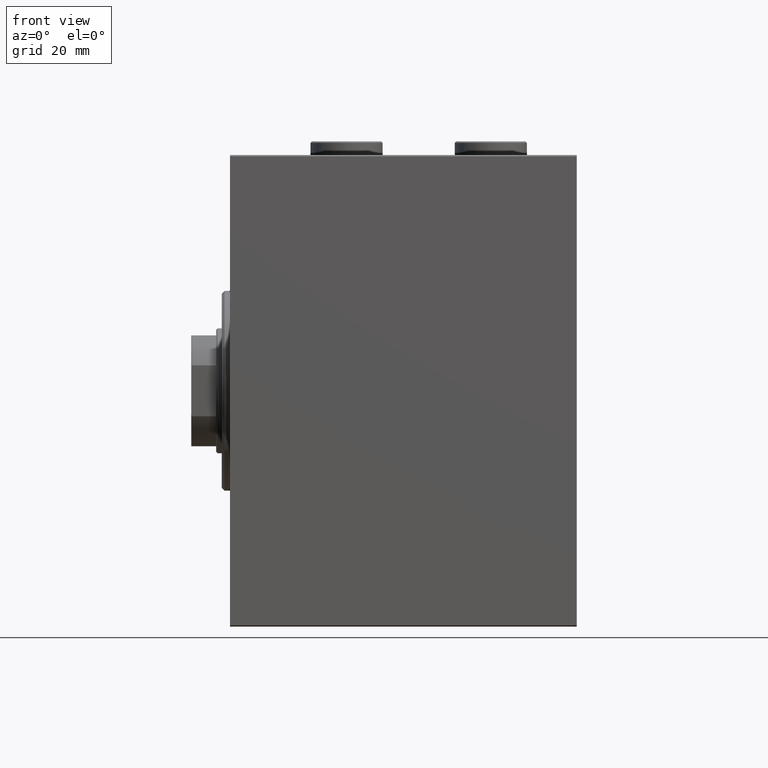
[diagram: clean part render]
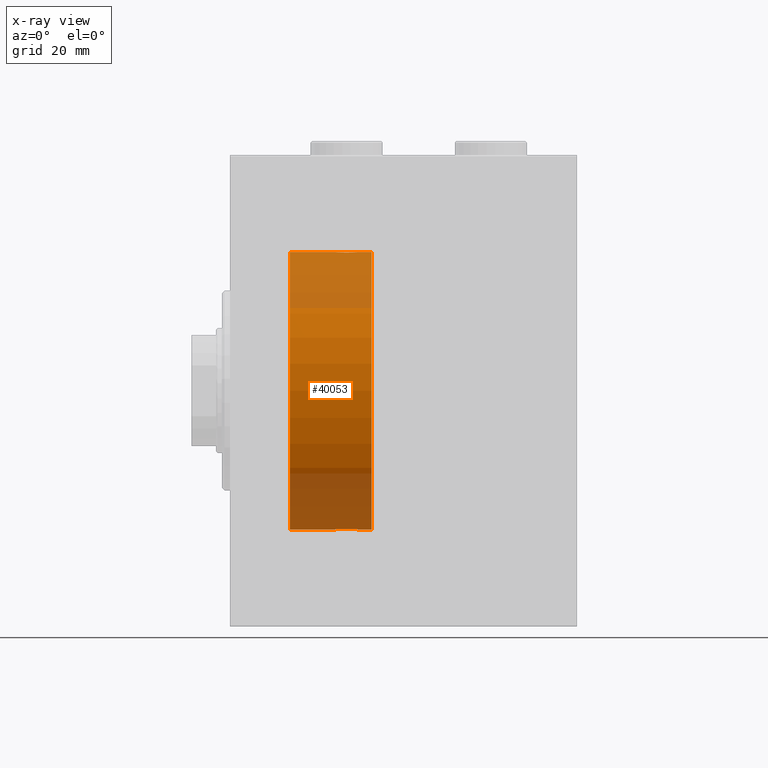
[diagram: x-ray — body ghosted, one internal face saturated and labeled with its STEP entity id]
A machine part, front view, then the same camera in x-ray: the body is ghosted and one INTERNAL B-rep face — a face not visible from any outside direction — is saturated and labeled: STEP entity #40053.
In plain terms, the highlighted cylindrical surface (partial cylindrical patch) has radius 50 mm, axis along (-1, -0, -0).
Its self-contained STEP definition (entity closure, byte-faithful):
#683 = CARTESIAN_POINT ( 'NONE',  ( 45.37881717263736192, -2.593114840406122390, -49.93325460257641168 ) ) ;
#684 = CARTESIAN_POINT ( 'NONE',  ( 37.75000000000000711, -7.073857814331912646E-15, -50.00000000000000000 ) ) ;
#717 = VERTEX_POINT ( 'NONE', #11257 ) ;
#1375 = CARTESIAN_POINT ( 'NONE',  ( 37.75000000000000711, -2.480809774739037926E-23, 50.00000000000000000 ) ) ;
#1570 = CARTESIAN_POINT ( 'NONE',  ( 44.58820214676201488, -3.382416624899787561, 49.88570010427956447 ) ) ;
#1645 = VERTEX_POINT ( 'NONE', #1375 ) ;
#2255 = CARTESIAN_POINT ( 'NONE',  ( 43.88217049484444487, -3.820681512513388611, 49.85392475515401145 ) ) ;
#2477 = CARTESIAN_POINT ( 'NONE',  ( 40.62666563420963683, -4.031616700143192844, 49.83731072121799599 ) ) ;
#2862 = DIRECTION ( 'NONE',  ( -1.000000000000000000, -0.000000000000000000, -0.000000000000000000 ) ) ;
#3230 = CARTESIAN_POINT ( 'NONE',  ( 45.68937155679385853, -2.128188802142358949, -49.95522967821975158 ) ) ;
#3381 = DIRECTION ( 'NONE',  ( -1.000000000000000000, -0.000000000000000000, -0.000000000000000000 ) ) ;
#3683 = CARTESIAN_POINT ( 'NONE',  ( 44.13136399446156588, -3.687400765141522818, -49.86408552998298660 ) ) ;
#3905 = CARTESIAN_POINT ( 'NONE',  ( 46.22310752799000966, -0.5531336717328987351, -49.99769193709643389 ) ) ;
#4611 = DIRECTION ( 'NONE',  ( 0.000000000000000000, 0.000000000000000000, 1.000000000000000000 ) ) ;
#4641 = CIRCLE ( 'NONE', #10512, 50.00000000000000000 ) ;
#4935 = CARTESIAN_POINT ( 'NONE',  ( 51.00000000000000711, 0.000000000000000000, 50.00000000000000000 ) ) ;
#5783 = EDGE_CURVE ( 'NONE', #8234, #37789, #25804, .T. ) ;
#5930 = CARTESIAN_POINT ( 'NONE',  ( 44.80697831839309941, -3.203153387937325736, 49.89767833571684719 ) ) ;
#6306 = FACE_OUTER_BOUND ( 'NONE', #15897, .T. ) ;
#6411 = EDGE_CURVE ( 'NONE', #717, #24036, #4641, .T. ) ;
#6653 = CARTESIAN_POINT ( 'NONE',  ( 46.25000000000000000, 6.123233970928975205E-15, -50.00000000000000000 ) ) ;
#6771 = DIRECTION ( 'NONE',  ( -1.000000000000000000, -0.000000000000000000, -0.000000000000000000 ) ) ;
#7289 = DIRECTION ( 'NONE',  ( 0.000000000000000000, 0.000000000000000000, 1.000000000000000000 ) ) ;
#7377 = CARTESIAN_POINT ( 'NONE',  ( 21.60000000000000142, 0.000000000000000000, 0.000000000000000000 ) ) ;
#7555 = ORIENTED_EDGE ( 'NONE', *, *, #14020, .T. ) ;
#7577 = CARTESIAN_POINT ( 'NONE',  ( 37.96920203844656783, -1.375411031076042789, -49.98173289062309976 ) ) ;
#8004 = CARTESIAN_POINT ( 'NONE',  ( 38.31062844320614147, -2.128188802142370051, 49.95522967821975158 ) ) ;
#8234 = VERTEX_POINT ( 'NONE', #684 ) ;
#8532 = DIRECTION ( 'NONE',  ( -1.000000000000000000, -0.000000000000000000, -0.000000000000000000 ) ) ;
#8921 = CARTESIAN_POINT ( 'NONE',  ( 46.22242635520780851, -0.5587117664567147202, 49.99763378604802000 ) ) ;
#9359 = ORIENTED_EDGE ( 'NONE', *, *, #28515, .T. ) ;
#9601 = CARTESIAN_POINT ( 'NONE',  ( 41.71604712973302753, -4.249777379711412451, 49.81906655360197789 ) ) ;
#10357 = CARTESIAN_POINT ( 'NONE',  ( 38.80078072038717352, -2.811461347331107419, -49.92127983148852621 ) ) ;
#10512 = AXIS2_PLACEMENT_3D ( 'NONE', #11642, #36261, #7289 ) ;
#10568 = CARTESIAN_POINT ( 'NONE',  ( 43.37333436579036317, -4.031616700143180410, -49.83731072121798888 ) ) ;
#10640 = CARTESIAN_POINT ( 'NONE',  ( 51.00000000000000711, 0.000000000000000000, 50.00000000000000000 ) ) ;
#10837 = EDGE_CURVE ( 'NONE', #37789, #31210, #29777, .T. ) ;
#10972 = CARTESIAN_POINT ( 'NONE',  ( 46.25000000000000000, -8.399120439301708033E-16, 50.00000000000000000 ) ) ;
#11027 = CARTESIAN_POINT ( 'NONE',  ( 39.19302168160691480, -3.203153387937319962, -49.89767833571684719 ) ) ;
#11225 = CARTESIAN_POINT ( 'NONE',  ( 37.88568086693992143, -1.101350136471744623, 49.98862054280448319 ) ) ;
#11248 = CARTESIAN_POINT ( 'NONE',  ( 40.63289352445426772, -4.033756670430848068, -49.83713703490974467 ) ) ;
#11257 = CARTESIAN_POINT ( 'NONE',  ( 51.00000000000000711, 6.123233995736766085E-15, -50.00000000000000000 ) ) ;
#11642 = CARTESIAN_POINT ( 'NONE',  ( 51.00000000000000711, 0.000000000000000000, 0.000000000000000000 ) ) ;
#11963 = ORIENTED_EDGE ( 'NONE', *, *, #23335, .T. ) ;
#12136 = CARTESIAN_POINT ( 'NONE',  ( 40.89676703965783844, -4.113647494206490229, 49.83052139214891696 ) ) ;
#12167 = ORIENTED_EDGE ( 'NONE', *, *, #10837, .T. ) ;
#12509 = VECTOR ( 'NONE', #3381, 1000.000000000000000 ) ;
#12597 = CARTESIAN_POINT ( 'NONE',  ( 46.25000000000000000, -8.399120439301708033E-16, 50.00000000000000000 ) ) ;
#13047 = CARTESIAN_POINT ( 'NONE',  ( 45.19921927961282648, -2.811461347331111416, 49.92127983148852621 ) ) ;
#14020 = EDGE_CURVE ( 'NONE', #1645, #23601, #24075, .T. ) ;
#14149 = ORIENTED_EDGE ( 'NONE', *, *, #5783, .T. ) ;
#14709 = CARTESIAN_POINT ( 'NONE',  ( 41.72275072962083442, -4.250219976861640880, -49.81902879621014080 ) ) ;
#14902 = CARTESIAN_POINT ( 'NONE',  ( 38.17899418014773971, -1.881229021238129517, 49.96525240872482954 ) ) ;
#15897 = EDGE_LOOP ( 'NONE', ( #28337, #9359, #11963, #14149, #12167, #44734, #7555, #27482 ) ) ;
#16280 = CARTESIAN_POINT ( 'NONE',  ( 45.81839248987871827, -1.886522330773423128, 49.96505190380066352 ) ) ;
#16430 = CYLINDRICAL_SURFACE ( 'NONE', #28325, 50.00000000000000000 ) ;
#17487 = CARTESIAN_POINT ( 'NONE',  ( 46.25000000000000000, -0.2773743941468464480, -50.00000000000000711 ) ) ;
#18171 = CARTESIAN_POINT ( 'NONE',  ( 44.59312720885956338, -3.378657745070617224, -49.88595615988430154 ) ) ;
#18369 = CARTESIAN_POINT ( 'NONE',  ( 37.75000000000000711, -2.480809774739037926E-23, 50.00000000000000000 ) ) ;
#19278 = CARTESIAN_POINT ( 'NONE',  ( 39.40687279114045083, -3.378657745070629659, 49.88595615988430154 ) ) ;
#19502 = CARTESIAN_POINT ( 'NONE',  ( 39.18846933484581285, -3.199146701881677934, 49.89793607725460589 ) ) ;
#20335 = CARTESIAN_POINT ( 'NONE',  ( 51.00000000000000711, 0.000000000000000000, 0.000000000000000000 ) ) ;
#20932 = CARTESIAN_POINT ( 'NONE',  ( 40.11782950515556934, -3.820681512513381506, -49.85392475515401145 ) ) ;
#21154 = CARTESIAN_POINT ( 'NONE',  ( 37.75000000000000711, -7.073857814331912646E-15, -50.00000000000000000 ) ) ;
#21383 = CARTESIAN_POINT ( 'NONE',  ( 46.03272642097311973, -1.369753890039645983, -49.98188917176553048 ) ) ;
#22038 = CARTESIAN_POINT ( 'NONE',  ( 38.62118282736263097, -2.593114840406134380, 49.93325460257641168 ) ) ;
#23187 = CARTESIAN_POINT ( 'NONE',  ( 44.12631644875079928, -3.690299572754728530, 49.86386974736159772 ) ) ;
#23335 = EDGE_CURVE ( 'NONE', #41345, #8234, #30616, .T. ) ;
#23414 = CARTESIAN_POINT ( 'NONE',  ( 41.44002132304353125, -4.222042462213131842, 49.82145436824653473 ) ) ;
#23601 = VERTEX_POINT ( 'NONE', #10972 ) ;
#23653 = CARTESIAN_POINT ( 'NONE',  ( 21.60000000000000142, 6.123233995736766085E-15, -50.00000000000000000 ) ) ;
#24036 = VERTEX_POINT ( 'NONE', #4935 ) ;
#24075 = B_SPLINE_CURVE_WITH_KNOTS ( 'NONE', 3,
 ( #18369, #28734, #42755, #11225, #25274, #14902, #8004, #22038, #41131, #19502, #19278, #33086, #33543, #2477, #12136, #23414, #9601, #26862, #26189, #26414, #37232, #2255, #23187, #1570, #5930, #13047, #33310, #44568, #16280, #30322, #30547, #8921, #36534, #12597 ),
 .UNSPECIFIED., .F., .F.,
 ( 4, 2, 2, 2, 2, 2, 2, 2, 2, 2, 2, 2, 2, 2, 2, 2, 4 ),
 ( 0.01329343152928753012, 0.01412407817529631390, 0.01495472482130509768, 0.01578537146731388147, 0.01661601811332266698, 0.01744666475933144903, 0.01827731140534023455, 0.01910795805134901659, 0.01993860469735780211, 0.02076925134336658416, 0.02159989798937536967, 0.02243054463538415172, 0.02326119128139293724, 0.02409183792740172275, 0.02492248457341050480, 0.02575313121941928685, 0.02658377786542807236 ),
 .UNSPECIFIED. ) ;
#24263 = CARTESIAN_POINT ( 'NONE',  ( 51.00000000000000711, 6.123233995736766085E-15, -50.00000000000000000 ) ) ;
#24395 = CARTESIAN_POINT ( 'NONE',  ( 44.81153066515419425, -3.199146701881665500, -49.89793607725460589 ) ) ;
#25274 = CARTESIAN_POINT ( 'NONE',  ( 37.96727357902688738, -1.369753890039655753, 49.98188917176553048 ) ) ;
#25326 = DIRECTION ( 'NONE',  ( -1.000000000000000000, 0.000000000000000000, 0.000000000000000000 ) ) ;
#25804 = LINE ( 'NONE', #43276, #44853 ) ;
#26189 = CARTESIAN_POINT ( 'NONE',  ( 42.55408564880149669, -4.222816005855214883, 49.82138837911247009 ) ) ;
#26414 = CARTESIAN_POINT ( 'NONE',  ( 43.09737617879038396, -4.115209769591117173, 49.83039196709102470 ) ) ;
#26862 = CARTESIAN_POINT ( 'NONE',  ( 42.27724927037917979, -4.250219976861652427, 49.81902879621013369 ) ) ;
#27482 = ORIENTED_EDGE ( 'NONE', *, *, #33362, .F. ) ;
#27849 = CARTESIAN_POINT ( 'NONE',  ( 41.44591435119853173, -4.222816005855206001, -49.82138837911246299 ) ) ;
#27913 = LINE ( 'NONE', #10640, #30532 ) ;
#28073 = CARTESIAN_POINT ( 'NONE',  ( 38.31397167878049714, -2.133925816755183114, -49.95498245321557818 ) ) ;
#28291 = CARTESIAN_POINT ( 'NONE',  ( 37.88750298919666903, -1.108337267831496886, -49.98846998601261760 ) ) ;
#28325 = AXIS2_PLACEMENT_3D ( 'NONE', #20335, #2862, #30253 ) ;
#28337 = ORIENTED_EDGE ( 'NONE', *, *, #6411, .F. ) ;
#28515 = EDGE_CURVE ( 'NONE', #717, #41345, #44979, .T. ) ;
#28734 = CARTESIAN_POINT ( 'NONE',  ( 37.75000000000001421, -0.2773743941468522767, 50.00000000000000711 ) ) ;
#28758 = CARTESIAN_POINT ( 'NONE',  ( 39.87368355124922203, -3.690299572754720980, -49.86386974736159772 ) ) ;
#29777 = CIRCLE ( 'NONE', #43722, 50.00000000000000000 ) ;
#30253 = DIRECTION ( 'NONE',  ( 0.000000000000000000, 0.000000000000000000, 1.000000000000000000 ) ) ;
#30322 = CARTESIAN_POINT ( 'NONE',  ( 46.03079796155342507, -1.375411031076047008, 49.98173289062309976 ) ) ;
#30532 = VECTOR ( 'NONE', #41497, 1000.000000000000000 ) ;
#30547 = CARTESIAN_POINT ( 'NONE',  ( 46.11249701080335228, -1.108337267831492889, 49.98846998601261760 ) ) ;
#30616 = B_SPLINE_CURVE_WITH_KNOTS ( 'NONE', 3,
 ( #39334, #17487, #3905, #42096, #21383, #34736, #3230, #683, #31306, #24395, #18171, #3683, #35190, #10568, #31530, #38431, #45332, #14709, #27849, #32202, #11248, #20932, #28758, #42776, #11027, #10357, #41876, #28073, #35649, #7577, #28291, #31976, #38651, #21154 ),
 .UNSPECIFIED., .F., .F.,
 ( 4, 2, 2, 2, 2, 2, 2, 2, 2, 2, 2, 2, 2, 2, 2, 2, 4 ),
 ( 0.01329343152928756308, 0.01412407817529634686, 0.01495472482130513064, 0.01578537146731391269, 0.01661601811332269821, 0.01744666475933148025, 0.01827731140534026577, 0.01910795805134904782, 0.01993860469735782986, 0.02076925134336661538, 0.02159989798937540090, 0.02243054463538418294, 0.02326119128139296499, 0.02409183792740175051, 0.02492248457341053255, 0.02575313121941931460, 0.02658377786542810012 ),
 .UNSPECIFIED. ) ;
#31210 = VERTEX_POINT ( 'NONE', #44616 ) ;
#31306 = CARTESIAN_POINT ( 'NONE',  ( 45.20303561951990901, -2.807099414226270184, -49.92152599098507437 ) ) ;
#31530 = CARTESIAN_POINT ( 'NONE',  ( 43.10323296034216156, -4.113647494206476907, -49.83052139214892406 ) ) ;
#31976 = CARTESIAN_POINT ( 'NONE',  ( 37.77757364479220570, -0.5587117664567219366, -49.99763378604802000 ) ) ;
#32202 = CARTESIAN_POINT ( 'NONE',  ( 40.90262382120964446, -4.115209769591110067, -49.83039196709102470 ) ) ;
#33086 = CARTESIAN_POINT ( 'NONE',  ( 39.86863600553844122, -3.687400765141535253, 49.86408552998298660 ) ) ;
#33310 = CARTESIAN_POINT ( 'NONE',  ( 45.37519984081967550, -2.597781786597471942, 49.93300953359122474 ) ) ;
#33362 = EDGE_CURVE ( 'NONE', #24036, #23601, #33995, .T. ) ;
#33543 = CARTESIAN_POINT ( 'NONE',  ( 40.11255260607201478, -3.818052230167724215, 49.85412671291930309 ) ) ;
#33995 = LINE ( 'NONE', #34444, #12509 ) ;
#34444 = CARTESIAN_POINT ( 'NONE',  ( 51.00000000000000711, 0.000000000000000000, 50.00000000000000000 ) ) ;
#34736 = CARTESIAN_POINT ( 'NONE',  ( 45.82100581985226739, -1.881229021238118859, -49.96525240872482954 ) ) ;
#35190 = CARTESIAN_POINT ( 'NONE',  ( 43.88744739392799943, -3.818052230167712668, -49.85412671291930309 ) ) ;
#35649 = CARTESIAN_POINT ( 'NONE',  ( 38.18160751012128884, -1.886522330773416911, -49.96505190380066352 ) ) ;
#36261 = DIRECTION ( 'NONE',  ( -1.000000000000000000, 0.000000000000000000, 0.000000000000000000 ) ) ;
#36534 = CARTESIAN_POINT ( 'NONE',  ( 46.25000000000000711, -0.2808785465865644704, 50.00000000000001421 ) ) ;
#37232 = CARTESIAN_POINT ( 'NONE',  ( 43.36710647554575360, -4.033756670430856062, 49.83713703490974467 ) ) ;
#37789 = VERTEX_POINT ( 'NONE', #23653 ) ;
#38431 = CARTESIAN_POINT ( 'NONE',  ( 42.55997867695648296, -4.222042462213118519, -49.82145436824653473 ) ) ;
#38651 = CARTESIAN_POINT ( 'NONE',  ( 37.75000000000001421, -0.2808785465865695774, -50.00000000000001421 ) ) ;
#39334 = CARTESIAN_POINT ( 'NONE',  ( 46.25000000000000000, 6.123233970928975205E-15, -50.00000000000000000 ) ) ;
#40053 = ADVANCED_FACE ( 'NONE', ( #6306 ), #16430, .F. ) ;
#40406 = VECTOR ( 'NONE', #6771, 1000.000000000000000 ) ;
#41131 = CARTESIAN_POINT ( 'NONE',  ( 38.79696438048009099, -2.807099414226282175, 49.92152599098507437 ) ) ;
#41345 = VERTEX_POINT ( 'NONE', #6653 ) ;
#41497 = DIRECTION ( 'NONE',  ( -1.000000000000000000, -0.000000000000000000, -0.000000000000000000 ) ) ;
#41876 = CARTESIAN_POINT ( 'NONE',  ( 38.62480015918034582, -2.597781786597465725, -49.93300953359122474 ) ) ;
#42096 = CARTESIAN_POINT ( 'NONE',  ( 46.11431913306007857, -1.101350136471736629, -49.98862054280448319 ) ) ;
#42755 = CARTESIAN_POINT ( 'NONE',  ( 37.77689247201000455, -0.5531336717329051744, 49.99769193709643389 ) ) ;
#42776 = CARTESIAN_POINT ( 'NONE',  ( 39.41179785323799933, -3.382416624899781787, -49.88570010427956447 ) ) ;
#43276 = CARTESIAN_POINT ( 'NONE',  ( 51.00000000000000711, 6.123233995736766085E-15, -50.00000000000000000 ) ) ;
#43722 = AXIS2_PLACEMENT_3D ( 'NONE', #7377, #25326, #4611 ) ;
#44246 = EDGE_CURVE ( 'NONE', #1645, #31210, #27913, .T. ) ;
#44568 = CARTESIAN_POINT ( 'NONE',  ( 45.68602832121950286, -2.133925816755187110, 49.95498245321557818 ) ) ;
#44616 = CARTESIAN_POINT ( 'NONE',  ( 21.60000000000000142, 0.000000000000000000, 50.00000000000000000 ) ) ;
#44734 = ORIENTED_EDGE ( 'NONE', *, *, #44246, .F. ) ;
#44853 = VECTOR ( 'NONE', #8532, 1000.000000000000000 ) ;
#44979 = LINE ( 'NONE', #24263, #40406 ) ;
#45332 = CARTESIAN_POINT ( 'NONE',  ( 42.28395287026698668, -4.249777379711400904, -49.81906655360197789 ) ) ;